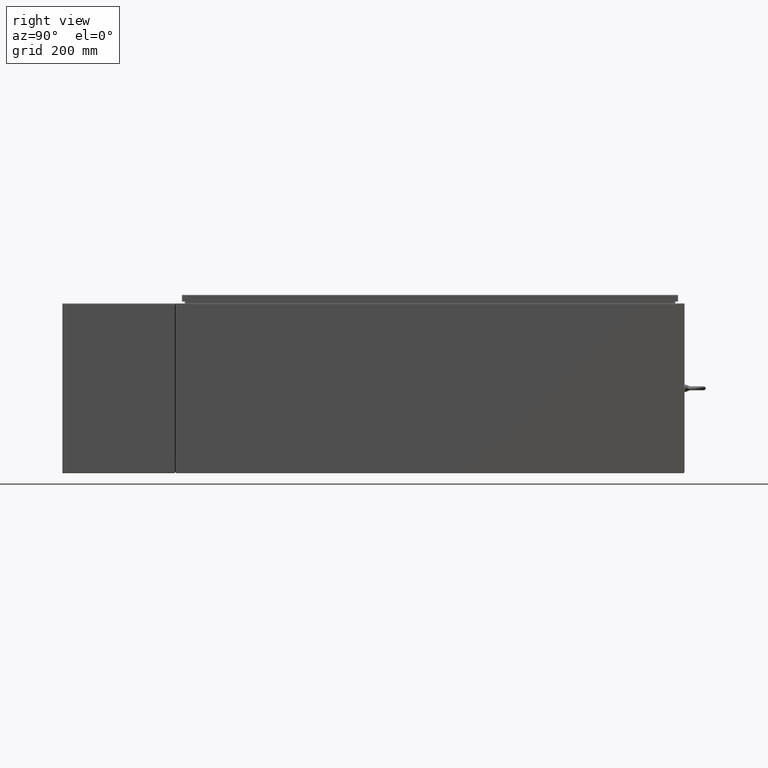
[diagram: clean part render]
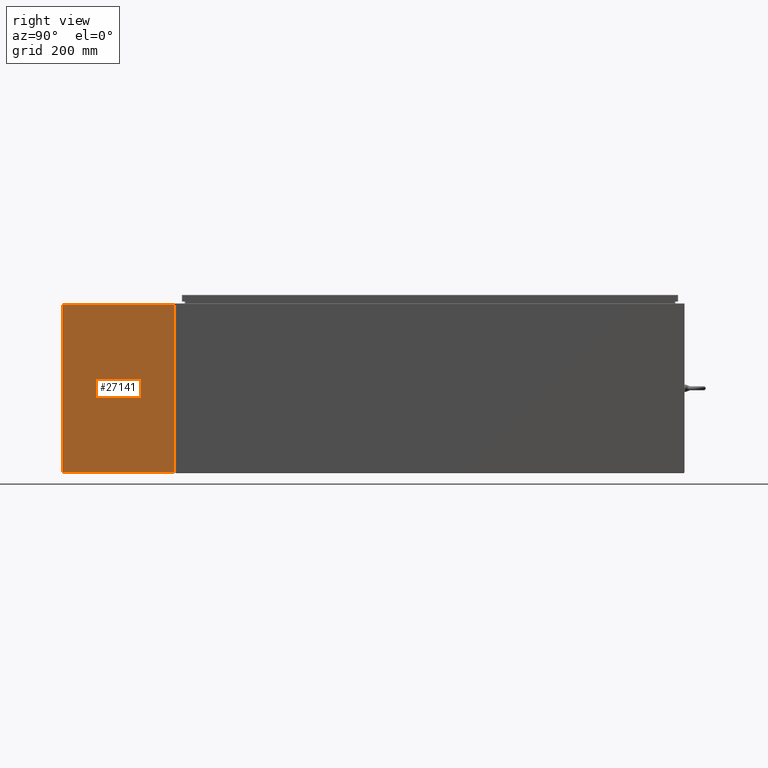
[diagram: same view with one face highlighted and labeled with its STEP entity id]
A machine part, right view. The second image highlights one B-rep face of the part: STEP entity #27141.
In plain terms, the highlighted planar face has unit normal (1, 0, -0).
Its self-contained STEP definition (entity closure, byte-faithful):
#1313 = EDGE_CURVE ( 'NONE', #19221, #47141, #68254, .T. ) ;
#3861 = DIRECTION ( 'NONE',  ( -1.000000000000000000, 0.0000000000000000000, -0.0000000000000000000 ) ) ;
#5331 = PLANE ( 'NONE',  #22486 ) ;
#7742 = FACE_OUTER_BOUND ( 'NONE', #37907, .T. ) ;
#9059 = ORIENTED_EDGE ( 'NONE', *, *, #28234, .T. ) ;
#13248 = DIRECTION ( 'NONE',  ( 1.000000000000000000, 0.0000000000000000000, 0.0000000000000000000 ) ) ;
#13755 = VERTEX_POINT ( 'NONE', #52263 ) ;
#18270 = CARTESIAN_POINT ( 'NONE',  ( 11.85699999999999800, -7.999999999999989300, -0.1039999999999998600 ) ) ;
#19221 = VERTEX_POINT ( 'NONE', #32718 ) ;
#20251 = ORIENTED_EDGE ( 'NONE', *, *, #47542, .T. ) ;
#20612 = VERTEX_POINT ( 'NONE', #18270 ) ;
#21036 = DIRECTION ( 'NONE',  ( 0.0000000000000000000, 0.0000000000000000000, -1.000000000000000000 ) ) ;
#22486 = AXIS2_PLACEMENT_3D ( 'NONE', #65069, #21036, #3861 ) ;
#27096 = CARTESIAN_POINT ( 'NONE',  ( -11.85700000000000100, -7.999999999999999100, -0.1039999999999998600 ) ) ;
#27141 = ADVANCED_FACE ( 'NONE', ( #7742 ), #5331, .T. ) ;
#28234 = EDGE_CURVE ( 'NONE', #47141, #20612, #55456, .T. ) ;
#28467 = LINE ( 'NONE', #27096, #57629 ) ;
#29541 = CARTESIAN_POINT ( 'NONE',  ( 11.85699999999999900, 7.857000000000001100, -0.1039999999999998600 ) ) ;
#32474 = EDGE_CURVE ( 'NONE', #13755, #20612, #55806, .T. ) ;
#32660 = DIRECTION ( 'NONE',  ( -0.0000000000000000000, 1.000000000000000000, -0.0000000000000000000 ) ) ;
#32718 = CARTESIAN_POINT ( 'NONE',  ( -11.85700000000000100, 7.856999999999998400, -0.1039999999999993600 ) ) ;
#33052 = DIRECTION ( 'NONE',  ( 1.000000000000000000, 0.0000000000000000000, 0.0000000000000000000 ) ) ;
#37907 = EDGE_LOOP ( 'NONE', ( #20251, #61121, #9059, #51241 ) ) ;
#38733 = CARTESIAN_POINT ( 'NONE',  ( -11.85700000000000100, 7.857000000000001100, -0.1039999999999998600 ) ) ;
#41600 = DIRECTION ( 'NONE',  ( -0.0000000000000000000, -1.000000000000000000, -0.0000000000000000000 ) ) ;
#43002 = VECTOR ( 'NONE', #13248, 39.37007874015748100 ) ;
#45915 = CARTESIAN_POINT ( 'NONE',  ( -12.00000000000000400, -7.999999999999999100, -0.1039999999999999800 ) ) ;
#47024 = CARTESIAN_POINT ( 'NONE',  ( 11.85699999999999800, 8.000000000000001800, -0.1039999999999998600 ) ) ;
#47141 = VERTEX_POINT ( 'NONE', #29541 ) ;
#47542 = EDGE_CURVE ( 'NONE', #13755, #19221, #28467, .T. ) ;
#51241 = ORIENTED_EDGE ( 'NONE', *, *, #32474, .F. ) ;
#52263 = CARTESIAN_POINT ( 'NONE',  ( -11.85700000000000100, -8.000000000000000000, -0.1039999999999998600 ) ) ;
#53369 = VECTOR ( 'NONE', #33052, 39.37007874015748100 ) ;
#55456 = LINE ( 'NONE', #47024, #70321 ) ;
#55806 = LINE ( 'NONE', #45915, #43002 ) ;
#57629 = VECTOR ( 'NONE', #32660, 39.37007874015748100 ) ;
#61121 = ORIENTED_EDGE ( 'NONE', *, *, #1313, .T. ) ;
#65069 = CARTESIAN_POINT ( 'NONE',  ( 11.99999999999998900, 8.000000000000001800, -0.1039999999999999800 ) ) ;
#68254 = LINE ( 'NONE', #38733, #53369 ) ;
#70321 = VECTOR ( 'NONE', #41600, 39.37007874015748100 ) ;